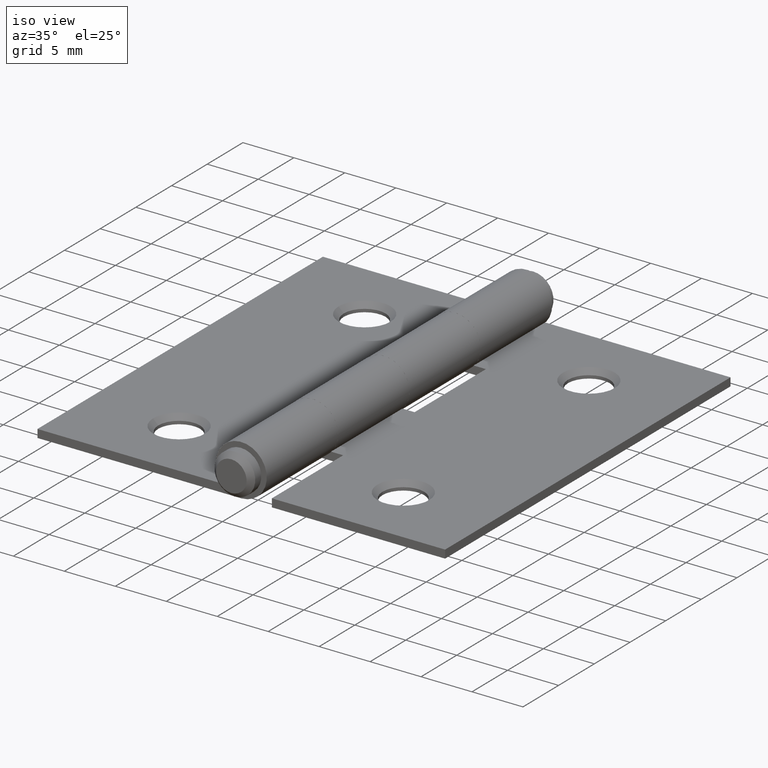
[diagram: clean part render]
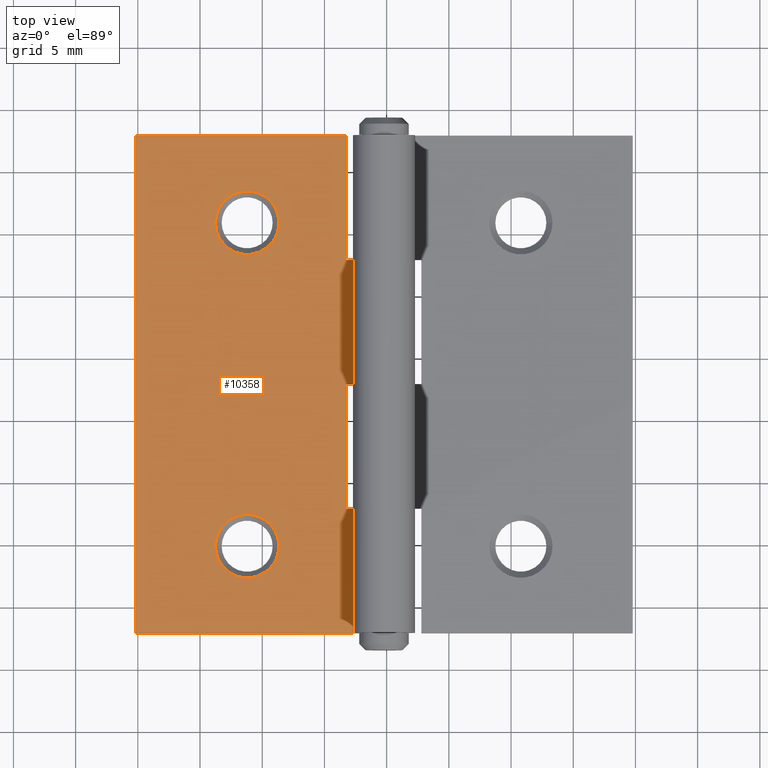
[diagram: tour spotlight — one face highlighted and labeled with its STEP entity id]
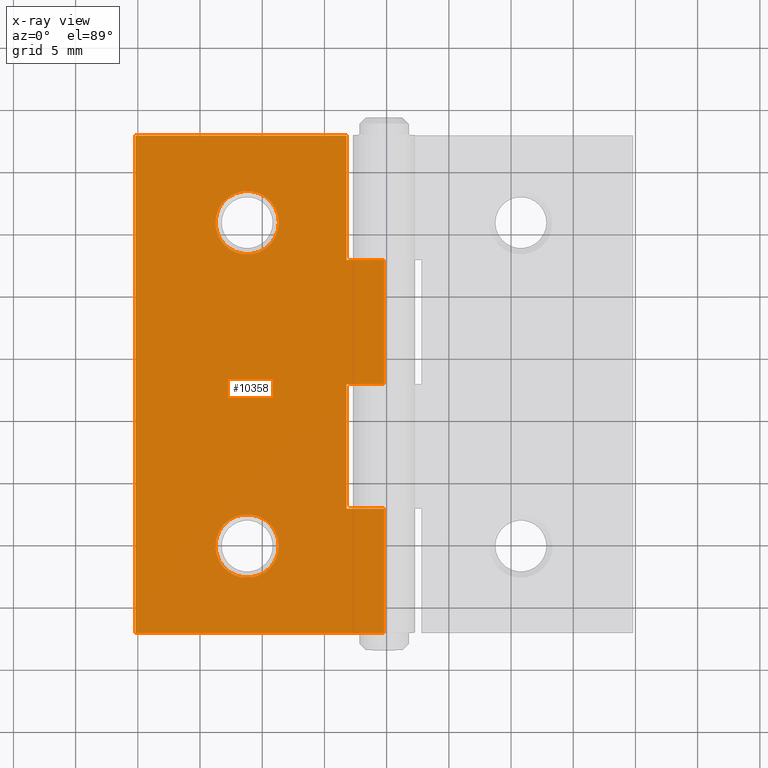
[diagram: x-ray of the same camera — body ghosted, this tour face saturated]
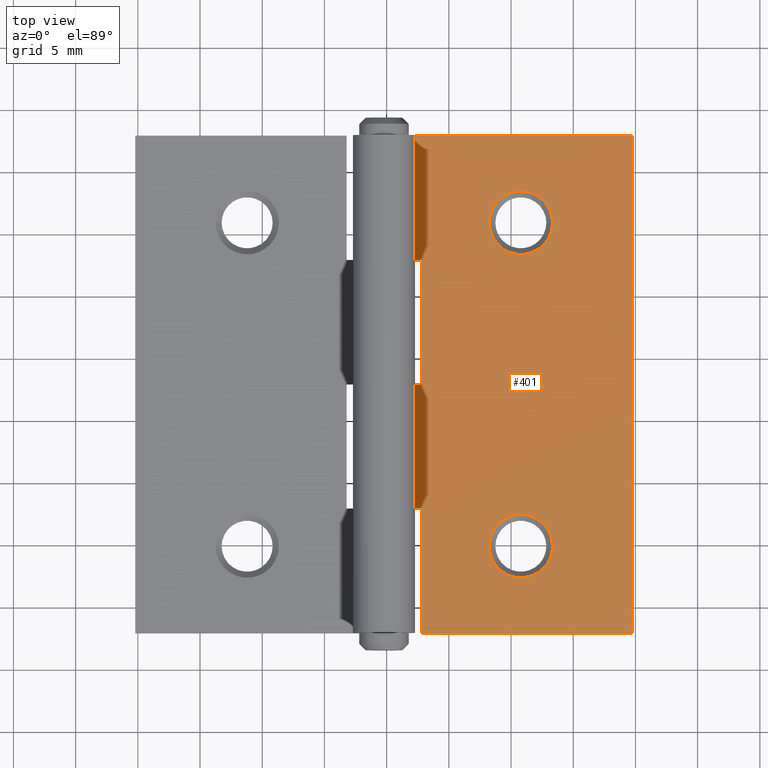
[diagram: tour spotlight — one face highlighted and labeled with its STEP entity id]
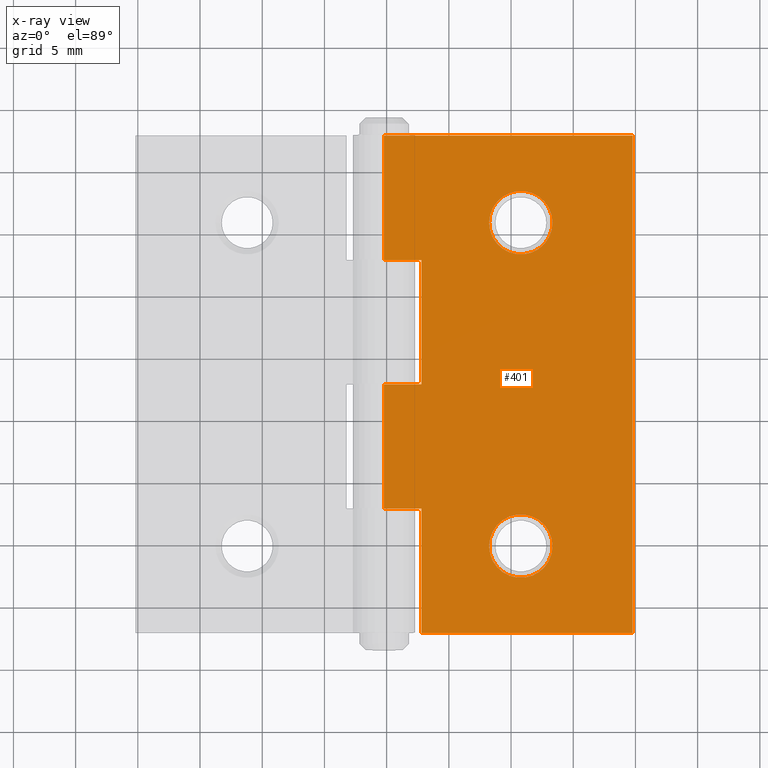
[diagram: x-ray of the same camera — body ghosted, this tour face saturated]
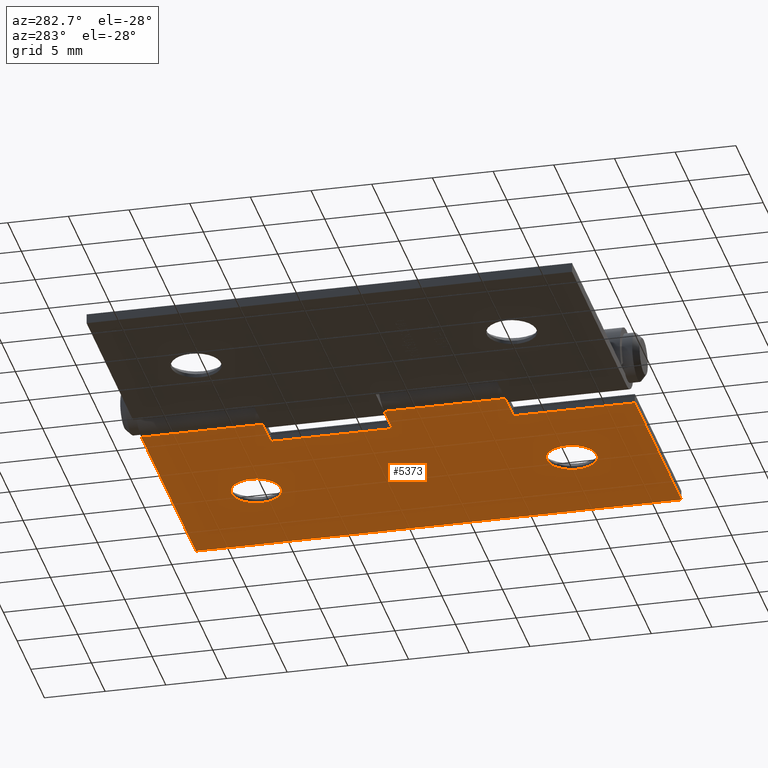
[diagram: tour spotlight — one face highlighted and labeled with its STEP entity id]
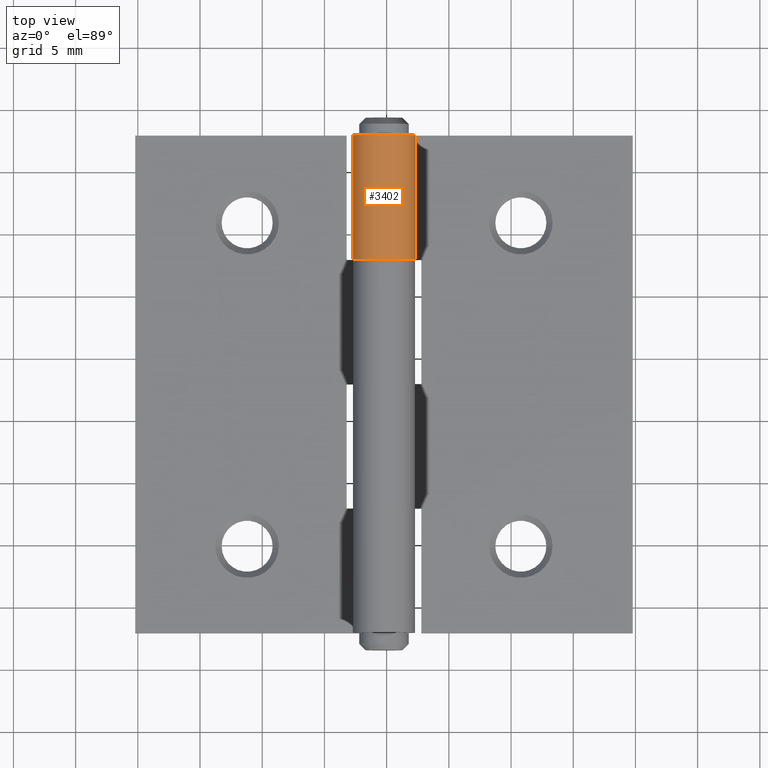
[diagram: tour spotlight — one face highlighted and labeled with its STEP entity id]
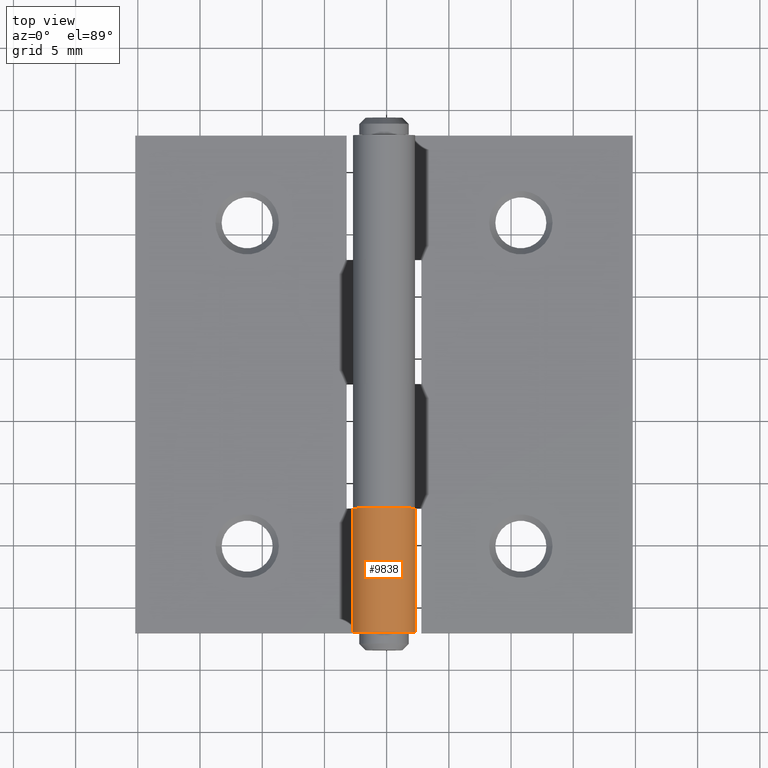
[diagram: tour spotlight — one face highlighted and labeled with its STEP entity id]
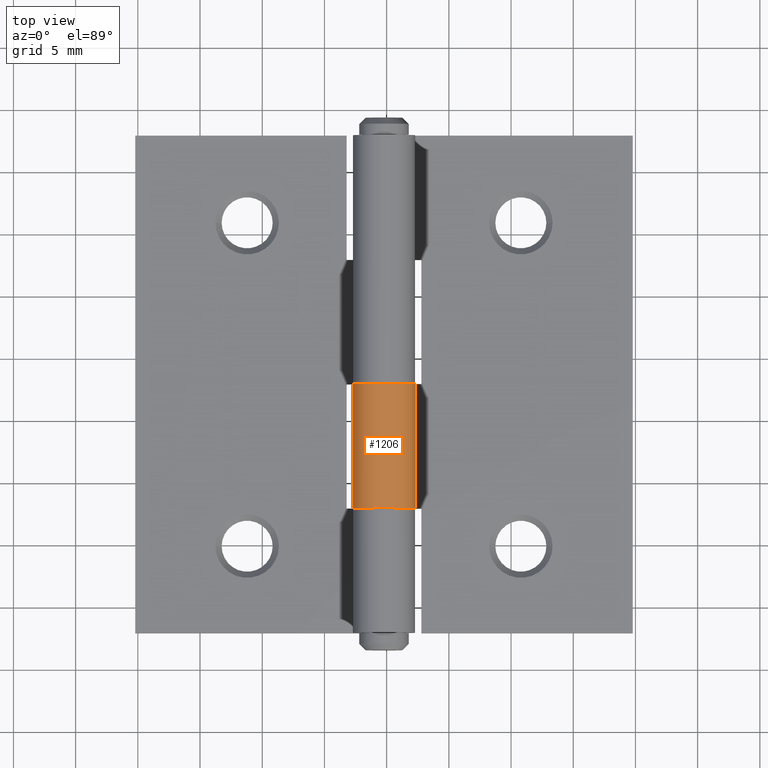
[diagram: tour spotlight — one face highlighted and labeled with its STEP entity id]
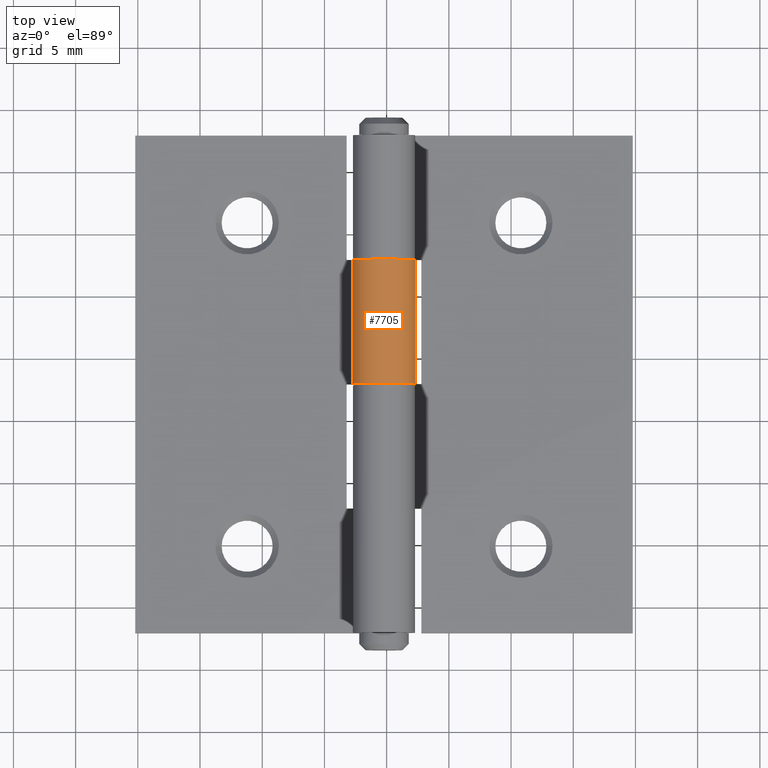
[diagram: tour spotlight — one face highlighted and labeled with its STEP entity id]
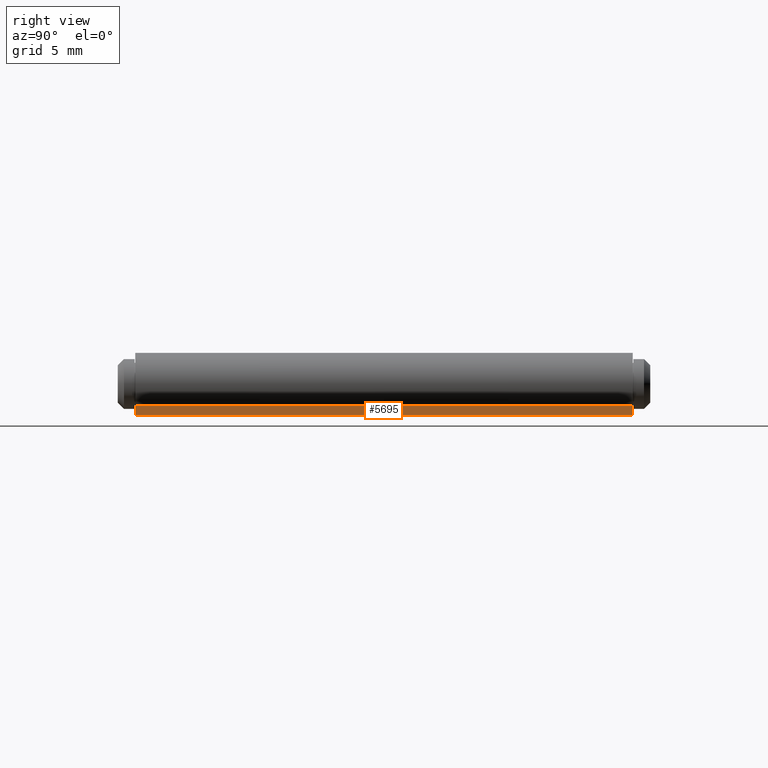
[diagram: tour spotlight — one face highlighted and labeled with its STEP entity id]
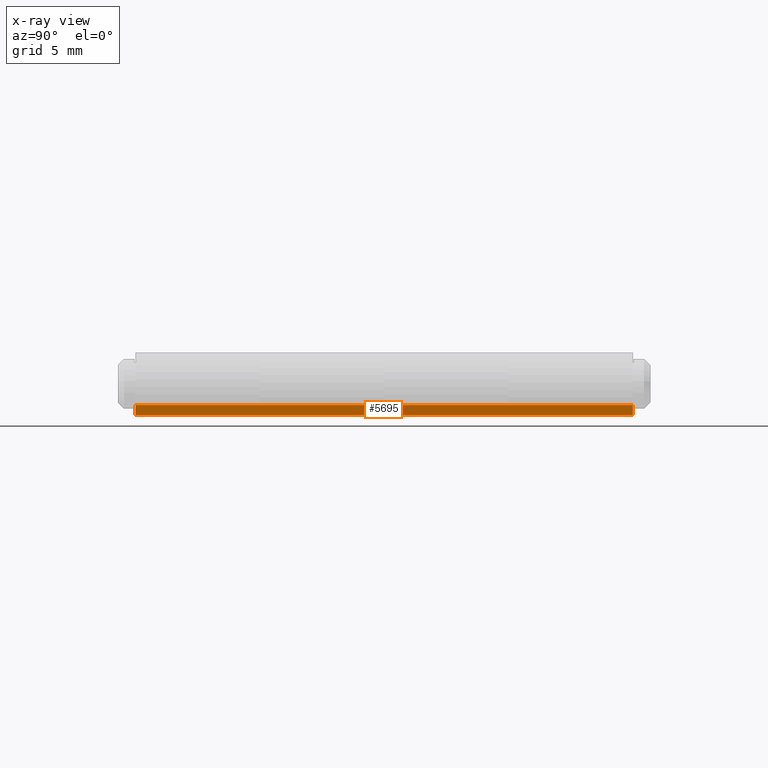
[diagram: x-ray of the same camera — body ghosted, this tour face saturated]
A machine part: a face-by-face anatomy tour. The part has 224 B-rep faces; the first image is the clean iso view, then the 8 largest visible faces are spotlighted one at a time (largest first), each with its STEP entity span.

Face 1 — top view, entity #10358. An x-ray twin of the same camera follows (body ghosted, this face saturated) — the face is partly hidden behind the body. In plain terms, the highlighted planar face has unit normal (-0, 0, -1).
Definition (entity closure, byte-faithful):
#192 = LINE ( 'NONE', #5171, #6454 ) ;
#383 = CARTESIAN_POINT ( 'NONE',  ( -22.50000000000000000, -20.00000000000000000, 0.8000000000000024869 ) ) ;
#419 = EDGE_CURVE ( 'NONE', #901, #8282, #9511, .T. ) ;
#499 = VERTEX_POINT ( 'NONE', #6265 ) ;
#760 = FACE_BOUND ( 'NONE', #4862, .T. ) ;
#806 = LINE ( 'NONE', #7033, #2960 ) ;
#901 = VERTEX_POINT ( 'NONE', #4815 ) ;
#1013 = CARTESIAN_POINT ( 'NONE',  ( -5.499999999999998224, 20.00000000000000000, 0.8000000000000003775 ) ) ;
#1032 = EDGE_CURVE ( 'NONE', #8872, #7978, #5064, .T. ) ;
#1057 = VERTEX_POINT ( 'NONE', #1726 ) ;
#1283 = DIRECTION ( 'NONE',  ( -1.301042606982605567E-16, 0.000000000000000000, -1.000000000000000000 ) ) ;
#1325 = CARTESIAN_POINT ( 'NONE',  ( -2.500000000000000444, 0.000000000000000000, 0.7999999999999999334 ) ) ;
#1388 = FACE_OUTER_BOUND ( 'NONE', #4230, .T. ) ;
#1397 = ORIENTED_EDGE ( 'NONE', *, *, #4462, .T. ) ;
#1555 = VECTOR ( 'NONE', #7431, 1000.000000000000000 ) ;
#1568 = CARTESIAN_POINT ( 'NONE',  ( -16.05000000000004690, 12.99999999999999822, 0.8000000000000017097 ) ) ;
#1726 = CARTESIAN_POINT ( 'NONE',  ( -5.499999999999999112, 10.00000000000000178, 0.8000000000000003775 ) ) ;
#1754 = VERTEX_POINT ( 'NONE', #1568 ) ;
#2026 = ORIENTED_EDGE ( 'NONE', *, *, #10073, .T. ) ;
#2056 = EDGE_CURVE ( 'NONE', #499, #8872, #2451, .T. ) ;
#2106 = VECTOR ( 'NONE', #5243, 1000.000000000000000 ) ;
#2355 = CARTESIAN_POINT ( 'NONE',  ( -16.05000000000004334, -13.00000000000000178, 0.8000000000000017097 ) ) ;
#2373 = LINE ( 'NONE', #5888, #2106 ) ;
#2451 = LINE ( 'NONE', #8213, #1555 ) ;
#2530 = ORIENTED_EDGE ( 'NONE', *, *, #3096, .T. ) ;
#2549 = VERTEX_POINT ( 'NONE', #9182 ) ;
#2745 = DIRECTION ( 'NONE',  ( -1.000000000000000000, -2.940209281316622002E-16, 1.301042606982605567E-16 ) ) ;
#2812 = PLANE ( 'NONE',  #5720 ) ;
#2889 = CARTESIAN_POINT ( 'NONE',  ( -2.500000000000000444, -20.00000000000000000, 0.7999999999999999334 ) ) ;
#2960 = VECTOR ( 'NONE', #3826, 1000.000000000000000 ) ;
#3048 = AXIS2_PLACEMENT_3D ( 'NONE', #6129, #1283, #8676 ) ;
#3096 = EDGE_CURVE ( 'NONE', #9664, #499, #192, .T. ) ;
#3113 = EDGE_CURVE ( 'NONE', #9689, #1057, #2373, .T. ) ;
#3166 = EDGE_CURVE ( 'NONE', #9689, #7978, #7815, .T. ) ;
#3200 = LINE ( 'NONE', #7203, #10281 ) ;
#3709 = CARTESIAN_POINT ( 'NONE',  ( -13.50000000000000711, 12.99999999999999822, 0.8000000000000013767 ) ) ;
#3777 = DIRECTION ( 'NONE',  ( 1.000000000000000000, -0.000000000000000000, -1.301042606982605567E-16 ) ) ;
#3826 = DIRECTION ( 'NONE',  ( -0.000000000000000000, -1.000000000000000000, -0.000000000000000000 ) ) ;
#3892 = CARTESIAN_POINT ( 'NONE',  ( -22.50000000000000000, 20.00000000000000000, 0.8000000000000024869 ) ) ;
#3903 = VECTOR ( 'NONE', #4513, 1000.000000000000000 ) ;
#3949 = ORIENTED_EDGE ( 'NONE', *, *, #3113, .T. ) ;
#4142 = ORIENTED_EDGE ( 'NONE', *, *, #1032, .T. ) ;
#4230 = EDGE_LOOP ( 'NONE', ( #10109, #4142, #4577, #3949, #8311, #5855, #4606, #2026, #6096, #2530 ) ) ;
#4462 = EDGE_CURVE ( 'NONE', #1754, #1754, #8212, .T. ) ;
#4513 = DIRECTION ( 'NONE',  ( -0.000000000000000000, -1.000000000000000000, -0.000000000000000000 ) ) ;
#4547 = DIRECTION ( 'NONE',  ( -1.301042606982605567E-16, 0.000000000000000000, -1.000000000000000000 ) ) ;
#4577 = ORIENTED_EDGE ( 'NONE', *, *, #3166, .F. ) ;
#4606 = ORIENTED_EDGE ( 'NONE', *, *, #419, .T. ) ;
#4645 = DIRECTION ( 'NONE',  ( -0.000000000000000000, -1.000000000000000000, -0.000000000000000000 ) ) ;
#4754 = DIRECTION ( 'NONE',  ( 1.000000000000000000, -0.000000000000000000, -1.301042606982605567E-16 ) ) ;
#4815 = CARTESIAN_POINT ( 'NONE',  ( -22.50000000000000000, 20.00000000000000000, 0.8000000000000024869 ) ) ;
#4862 = EDGE_LOOP ( 'NONE', ( #1397 ) ) ;
#5064 = LINE ( 'NONE', #1325, #8494 ) ;
#5171 = CARTESIAN_POINT ( 'NONE',  ( -2.499999999999992006, -9.999999999999998224, 0.7999999999999999334 ) ) ;
#5243 = DIRECTION ( 'NONE',  ( -1.000000000000000000, 0.000000000000000000, 1.301042606982605567E-16 ) ) ;
#5720 = AXIS2_PLACEMENT_3D ( 'NONE', #6762, #10081, #6047 ) ;
#5855 = ORIENTED_EDGE ( 'NONE', *, *, #9737, .F. ) ;
#5888 = CARTESIAN_POINT ( 'NONE',  ( -2.500000000000000444, 10.00000000000000178, 0.7999999999999999334 ) ) ;
#5968 = LINE ( 'NONE', #2889, #8126 ) ;
#6047 = DIRECTION ( 'NONE',  ( -1.000000000000000000, 0.000000000000000000, 1.301042606982605567E-16 ) ) ;
#6096 = ORIENTED_EDGE ( 'NONE', *, *, #7559, .F. ) ;
#6129 = CARTESIAN_POINT ( 'NONE',  ( -13.50000000000000355, -13.00000000000000178, 0.8000000000000013767 ) ) ;
#6253 = CARTESIAN_POINT ( 'NONE',  ( -5.499999999999998224, 0.000000000000000000, 0.8000000000000003775 ) ) ;
#6265 = CARTESIAN_POINT ( 'NONE',  ( -5.499999999999998224, -9.999999999999998224, 0.8000000000000003775 ) ) ;
#6454 = VECTOR ( 'NONE', #2745, 1000.000000000000000 ) ;
#6762 = CARTESIAN_POINT ( 'NONE',  ( -2.500000000000000444, 20.00000000000000000, 0.7999999999999999334 ) ) ;
#6904 = CARTESIAN_POINT ( 'NONE',  ( -2.500000000000000444, 20.00000000000000000, 0.7999999999999999334 ) ) ;
#7033 = CARTESIAN_POINT ( 'NONE',  ( -2.500000000000000444, 20.00000000000000000, 0.7999999999999999334 ) ) ;
#7203 = CARTESIAN_POINT ( 'NONE',  ( -2.500000000000000444, 20.00000000000000000, 0.7999999999999999334 ) ) ;
#7256 = CIRCLE ( 'NONE', #3048, 2.550000000000040234 ) ;
#7431 = DIRECTION ( 'NONE',  ( 0.000000000000000000, 1.000000000000000000, 0.000000000000000000 ) ) ;
#7559 = EDGE_CURVE ( 'NONE', #9664, #2549, #806, .T. ) ;
#7735 = VERTEX_POINT ( 'NONE', #9240 ) ;
#7784 = DIRECTION ( 'NONE',  ( 1.000000000000000000, -0.000000000000000000, -1.301042606982605567E-16 ) ) ;
#7815 = LINE ( 'NONE', #6904, #3903 ) ;
#7868 = LINE ( 'NONE', #1013, #9402 ) ;
#7978 = VERTEX_POINT ( 'NONE', #8893 ) ;
#8123 = AXIS2_PLACEMENT_3D ( 'NONE', #3709, #4547, #9349 ) ;
#8126 = VECTOR ( 'NONE', #3777, 1000.000000000000000 ) ;
#8212 = CIRCLE ( 'NONE', #8123, 2.550000000000040234 ) ;
#8213 = CARTESIAN_POINT ( 'NONE',  ( -5.499999999999998224, 20.00000000000000000, 0.8000000000000003775 ) ) ;
#8282 = VERTEX_POINT ( 'NONE', #383 ) ;
#8311 = ORIENTED_EDGE ( 'NONE', *, *, #9933, .T. ) ;
#8362 = CARTESIAN_POINT ( 'NONE',  ( -2.500000000000000444, -9.999999999999998224, 0.7999999999999999334 ) ) ;
#8494 = VECTOR ( 'NONE', #7784, 1000.000000000000000 ) ;
#8659 = EDGE_LOOP ( 'NONE', ( #9411 ) ) ;
#8676 = DIRECTION ( 'NONE',  ( -1.000000000000000000, 0.000000000000000000, 1.275531967629985031E-16 ) ) ;
#8872 = VERTEX_POINT ( 'NONE', #6253 ) ;
#8893 = CARTESIAN_POINT ( 'NONE',  ( -2.500000000000000444, 0.000000000000000000, 0.7999999999999999334 ) ) ;
#9182 = CARTESIAN_POINT ( 'NONE',  ( -2.500000000000000444, -20.00000000000000000, 0.7999999999999999334 ) ) ;
#9240 = CARTESIAN_POINT ( 'NONE',  ( -5.499999999999998224, 20.00000000000000000, 0.8000000000000012657 ) ) ;
#9252 = VECTOR ( 'NONE', #4645, 1000.000000000000000 ) ;
#9349 = DIRECTION ( 'NONE',  ( -1.000000000000000000, 0.000000000000000000, 1.275531967629985031E-16 ) ) ;
#9402 = VECTOR ( 'NONE', #9852, 1000.000000000000000 ) ;
#9411 = ORIENTED_EDGE ( 'NONE', *, *, #10086, .T. ) ;
#9511 = LINE ( 'NONE', #3892, #9252 ) ;
#9664 = VERTEX_POINT ( 'NONE', #8362 ) ;
#9689 = VERTEX_POINT ( 'NONE', #10083 ) ;
#9737 = EDGE_CURVE ( 'NONE', #901, #7735, #3200, .T. ) ;
#9852 = DIRECTION ( 'NONE',  ( 8.673617379884036705E-17, 1.000000000000000000, -1.128474576789396418E-32 ) ) ;
#9898 = FACE_BOUND ( 'NONE', #8659, .T. ) ;
#9933 = EDGE_CURVE ( 'NONE', #1057, #7735, #7868, .T. ) ;
#10073 = EDGE_CURVE ( 'NONE', #8282, #2549, #5968, .T. ) ;
#10081 = DIRECTION ( 'NONE',  ( -1.301042606982605567E-16, 0.000000000000000000, -1.000000000000000000 ) ) ;
#10083 = CARTESIAN_POINT ( 'NONE',  ( -2.500000000000000000, 10.00000000000000178, 0.7999999999999999334 ) ) ;
#10086 = EDGE_CURVE ( 'NONE', #10393, #10393, #7256, .T. ) ;
#10109 = ORIENTED_EDGE ( 'NONE', *, *, #2056, .T. ) ;
#10281 = VECTOR ( 'NONE', #4754, 1000.000000000000000 ) ;
#10358 = ADVANCED_FACE ( 'NONE', ( #9898, #760, #1388 ), #2812, .F. ) ;
#10393 = VERTEX_POINT ( 'NONE', #2355 ) ;

Face 2 — top view, entity #401. An x-ray twin of the same camera follows (body ghosted, this face saturated) — the face is partly hidden behind the body. In plain terms, the highlighted planar face has unit normal (-0, -0, -1).
Definition (entity closure, byte-faithful):
#20 = EDGE_CURVE ( 'NONE', #9413, #3971, #5461, .T. ) ;
#25 = ORIENTED_EDGE ( 'NONE', *, *, #10212, .T. ) ;
#95 = LINE ( 'NONE', #5666, #6969 ) ;
#114 = CIRCLE ( 'NONE', #3199, 2.550000000000040234 ) ;
#149 = ORIENTED_EDGE ( 'NONE', *, *, #9542, .T. ) ;
#151 = CARTESIAN_POINT ( 'NONE',  ( -2.500000000000000000, 10.00000000000000178, 0.7999999999999999334 ) ) ;
#246 = EDGE_LOOP ( 'NONE', ( #25 ) ) ;
#350 = DIRECTION ( 'NONE',  ( -0.000000000000000000, -1.000000000000000000, -0.000000000000000000 ) ) ;
#401 = ADVANCED_FACE ( 'NONE', ( #4341, #1391, #1888 ), #6940, .F. ) ;
#484 = ORIENTED_EDGE ( 'NONE', *, *, #9871, .T. ) ;
#550 = LINE ( 'NONE', #2232, #8955 ) ;
#581 = CARTESIAN_POINT ( 'NONE',  ( -5.499999999999999112, 10.00000000000000178, 0.8000000000000003775 ) ) ;
#793 = CARTESIAN_POINT ( 'NONE',  ( -2.500000000000000444, 0.000000000000000000, 0.7999999999999999334 ) ) ;
#928 = CARTESIAN_POINT ( 'NONE',  ( -5.499999999999998224, 20.00000000000000000, 0.8000000000000012657 ) ) ;
#946 = CARTESIAN_POINT ( 'NONE',  ( -2.500000000000000444, 10.00000000000000178, 0.7999999999999999334 ) ) ;
#963 = EDGE_CURVE ( 'NONE', #9522, #4870, #9632, .T. ) ;
#1015 = VECTOR ( 'NONE', #2685, 1000.000000000000000 ) ;
#1162 = VECTOR ( 'NONE', #7043, 1000.000000000000000 ) ;
#1173 = EDGE_CURVE ( 'NONE', #4120, #6081, #95, .T. ) ;
#1391 = FACE_BOUND ( 'NONE', #4473, .T. ) ;
#1428 = DIRECTION ( 'NONE',  ( -1.000000000000000000, 0.000000000000000000, 1.275531967629985031E-16 ) ) ;
#1441 = EDGE_CURVE ( 'NONE', #9522, #6081, #5321, .T. ) ;
#1465 = VECTOR ( 'NONE', #350, 1000.000000000000000 ) ;
#1512 = EDGE_CURVE ( 'NONE', #6309, #3715, #9877, .T. ) ;
#1640 = VECTOR ( 'NONE', #10376, 1000.000000000000000 ) ;
#1766 = CIRCLE ( 'NONE', #5783, 2.550000000000040234 ) ;
#1888 = FACE_OUTER_BOUND ( 'NONE', #3287, .T. ) ;
#1953 = ORIENTED_EDGE ( 'NONE', *, *, #3226, .F. ) ;
#2002 = VECTOR ( 'NONE', #7066, 1000.000000000000000 ) ;
#2086 = VECTOR ( 'NONE', #8779, 1000.000000000000000 ) ;
#2232 = CARTESIAN_POINT ( 'NONE',  ( -2.500000000000000444, -20.00000000000000000, 0.7999999999999999334 ) ) ;
#2270 = VECTOR ( 'NONE', #4565, 1000.000000000000000 ) ;
#2685 = DIRECTION ( 'NONE',  ( -1.000000000000000000, 0.000000000000000000, 1.301042606982605567E-16 ) ) ;
#2853 = DIRECTION ( 'NONE',  ( -1.301042606982605567E-16, 0.000000000000000000, -1.000000000000000000 ) ) ;
#3199 = AXIS2_PLACEMENT_3D ( 'NONE', #3422, #3496, #9130 ) ;
#3226 = EDGE_CURVE ( 'NONE', #9941, #9825, #5805, .T. ) ;
#3287 = EDGE_LOOP ( 'NONE', ( #4045, #6997, #1953, #484, #6421, #9214, #4914, #6737, #6496, #3578 ) ) ;
#3422 = CARTESIAN_POINT ( 'NONE',  ( -13.50000000000000711, 12.99999999999999822, 0.8000000000000013767 ) ) ;
#3496 = DIRECTION ( 'NONE',  ( -1.301042606982605567E-16, 0.000000000000000000, -1.000000000000000000 ) ) ;
#3578 = ORIENTED_EDGE ( 'NONE', *, *, #8390, .T. ) ;
#3601 = CARTESIAN_POINT ( 'NONE',  ( -2.500000000000000444, 20.00000000000000000, 0.7999999999999999334 ) ) ;
#3652 = CARTESIAN_POINT ( 'NONE',  ( -5.499999999999998224, 20.00000000000000000, 0.8000000000000003775 ) ) ;
#3669 = VERTEX_POINT ( 'NONE', #3963 ) ;
#3715 = VERTEX_POINT ( 'NONE', #4544 ) ;
#3886 = CARTESIAN_POINT ( 'NONE',  ( -2.499999999999992006, -9.999999999999998224, 0.7999999999999999334 ) ) ;
#3963 = CARTESIAN_POINT ( 'NONE',  ( -16.05000000000004334, -13.00000000000000178, 0.8000000000000017097 ) ) ;
#3971 = VERTEX_POINT ( 'NONE', #5102 ) ;
#4045 = ORIENTED_EDGE ( 'NONE', *, *, #1512, .T. ) ;
#4120 = VERTEX_POINT ( 'NONE', #581 ) ;
#4257 = CARTESIAN_POINT ( 'NONE',  ( -22.50000000000000000, 20.00000000000000000, 0.8000000000000024869 ) ) ;
#4341 = FACE_BOUND ( 'NONE', #246, .T. ) ;
#4473 = EDGE_LOOP ( 'NONE', ( #149 ) ) ;
#4544 = CARTESIAN_POINT ( 'NONE',  ( -5.499999999999998224, 0.000000000000000000, 0.8000000000000003775 ) ) ;
#4565 = DIRECTION ( 'NONE',  ( 0.000000000000000000, 1.000000000000000000, 0.000000000000000000 ) ) ;
#4863 = LINE ( 'NONE', #3886, #1162 ) ;
#4870 = VERTEX_POINT ( 'NONE', #7929 ) ;
#4914 = ORIENTED_EDGE ( 'NONE', *, *, #963, .T. ) ;
#5102 = CARTESIAN_POINT ( 'NONE',  ( -2.500000000000000444, -20.00000000000000000, 0.7999999999999999334 ) ) ;
#5321 = LINE ( 'NONE', #6889, #2002 ) ;
#5401 = LINE ( 'NONE', #10440, #2086 ) ;
#5461 = LINE ( 'NONE', #6426, #1640 ) ;
#5527 = CARTESIAN_POINT ( 'NONE',  ( -13.50000000000000355, -13.00000000000000178, 0.8000000000000013767 ) ) ;
#5542 = EDGE_CURVE ( 'NONE', #3715, #9825, #5401, .T. ) ;
#5666 = CARTESIAN_POINT ( 'NONE',  ( -5.499999999999998224, 20.00000000000000000, 0.8000000000000003775 ) ) ;
#5679 = CARTESIAN_POINT ( 'NONE',  ( -2.500000000000000444, -9.999999999999998224, 0.7999999999999999334 ) ) ;
#5783 = AXIS2_PLACEMENT_3D ( 'NONE', #5527, #6268, #1428 ) ;
#5805 = LINE ( 'NONE', #3601, #1465 ) ;
#5940 = EDGE_CURVE ( 'NONE', #4870, #3971, #550, .T. ) ;
#6037 = DIRECTION ( 'NONE',  ( 8.673617379884036705E-17, 1.000000000000000000, -1.128474576789396418E-32 ) ) ;
#6056 = CARTESIAN_POINT ( 'NONE',  ( -22.50000000000000000, 20.00000000000000000, 0.8000000000000024869 ) ) ;
#6081 = VERTEX_POINT ( 'NONE', #928 ) ;
#6084 = CARTESIAN_POINT ( 'NONE',  ( -2.500000000000000444, 20.00000000000000000, 0.7999999999999999334 ) ) ;
#6268 = DIRECTION ( 'NONE',  ( -1.301042606982605567E-16, 0.000000000000000000, -1.000000000000000000 ) ) ;
#6309 = VERTEX_POINT ( 'NONE', #7259 ) ;
#6421 = ORIENTED_EDGE ( 'NONE', *, *, #1173, .T. ) ;
#6426 = CARTESIAN_POINT ( 'NONE',  ( -2.500000000000000444, 20.00000000000000000, 0.7999999999999999334 ) ) ;
#6496 = ORIENTED_EDGE ( 'NONE', *, *, #20, .F. ) ;
#6737 = ORIENTED_EDGE ( 'NONE', *, *, #5940, .T. ) ;
#6852 = VERTEX_POINT ( 'NONE', #7264 ) ;
#6876 = DIRECTION ( 'NONE',  ( -0.000000000000000000, -1.000000000000000000, -0.000000000000000000 ) ) ;
#6889 = CARTESIAN_POINT ( 'NONE',  ( -2.500000000000000444, 20.00000000000000000, 0.7999999999999999334 ) ) ;
#6940 = PLANE ( 'NONE',  #7312 ) ;
#6969 = VECTOR ( 'NONE', #6037, 1000.000000000000000 ) ;
#6997 = ORIENTED_EDGE ( 'NONE', *, *, #5542, .T. ) ;
#7043 = DIRECTION ( 'NONE',  ( -1.000000000000000000, -2.940209281316622002E-16, 1.301042606982605567E-16 ) ) ;
#7066 = DIRECTION ( 'NONE',  ( 1.000000000000000000, -0.000000000000000000, -1.301042606982605567E-16 ) ) ;
#7259 = CARTESIAN_POINT ( 'NONE',  ( -5.499999999999998224, -9.999999999999998224, 0.8000000000000003775 ) ) ;
#7264 = CARTESIAN_POINT ( 'NONE',  ( -16.05000000000004690, 12.99999999999999822, 0.8000000000000017097 ) ) ;
#7312 = AXIS2_PLACEMENT_3D ( 'NONE', #6084, #2853, #8541 ) ;
#7929 = CARTESIAN_POINT ( 'NONE',  ( -22.50000000000000000, -20.00000000000000000, 0.8000000000000024869 ) ) ;
#8390 = EDGE_CURVE ( 'NONE', #9413, #6309, #4863, .T. ) ;
#8541 = DIRECTION ( 'NONE',  ( -1.000000000000000000, 0.000000000000000000, 1.301042606982605567E-16 ) ) ;
#8779 = DIRECTION ( 'NONE',  ( 1.000000000000000000, -0.000000000000000000, -1.301042606982605567E-16 ) ) ;
#8955 = VECTOR ( 'NONE', #9573, 1000.000000000000000 ) ;
#9130 = DIRECTION ( 'NONE',  ( -1.000000000000000000, 0.000000000000000000, 1.275531967629985031E-16 ) ) ;
#9214 = ORIENTED_EDGE ( 'NONE', *, *, #1441, .F. ) ;
#9413 = VERTEX_POINT ( 'NONE', #5679 ) ;
#9522 = VERTEX_POINT ( 'NONE', #4257 ) ;
#9542 = EDGE_CURVE ( 'NONE', #6852, #6852, #114, .T. ) ;
#9573 = DIRECTION ( 'NONE',  ( 1.000000000000000000, -0.000000000000000000, -1.301042606982605567E-16 ) ) ;
#9632 = LINE ( 'NONE', #6056, #10260 ) ;
#9825 = VERTEX_POINT ( 'NONE', #793 ) ;
#9871 = EDGE_CURVE ( 'NONE', #9941, #4120, #10031, .T. ) ;
#9877 = LINE ( 'NONE', #3652, #2270 ) ;
#9941 = VERTEX_POINT ( 'NONE', #151 ) ;
#10031 = LINE ( 'NONE', #946, #1015 ) ;
#10212 = EDGE_CURVE ( 'NONE', #3669, #3669, #1766, .T. ) ;
#10260 = VECTOR ( 'NONE', #6876, 1000.000000000000000 ) ;
#10376 = DIRECTION ( 'NONE',  ( -0.000000000000000000, -1.000000000000000000, -0.000000000000000000 ) ) ;
#10440 = CARTESIAN_POINT ( 'NONE',  ( -2.500000000000000444, 0.000000000000000000, 0.7999999999999999334 ) ) ;

Face 3 — auxiliary view, entity #5373. In plain terms, the highlighted planar face has unit normal (0, 0, 1).
Definition (entity closure, byte-faithful):
#164 = CARTESIAN_POINT ( 'NONE',  ( 6.300000000000003375, 0.000000000000000000, -8.196568423990417465E-16 ) ) ;
#237 = CARTESIAN_POINT ( 'NONE',  ( -5.499999999999998224, 20.00000000000000000, 4.662069341687667094E-16 ) ) ;
#349 = VERTEX_POINT ( 'NONE', #6902 ) ;
#353 = VERTEX_POINT ( 'NONE', #5560 ) ;
#414 = CARTESIAN_POINT ( 'NONE',  ( -2.500000000000000444, 20.00000000000000000, 1.084202172485504434E-16 ) ) ;
#631 = ORIENTED_EDGE ( 'NONE', *, *, #6283, .T. ) ;
#818 = DIRECTION ( 'NONE',  ( -0.000000000000000000, -1.000000000000000000, -0.000000000000000000 ) ) ;
#922 = CARTESIAN_POINT ( 'NONE',  ( -13.50000000000000711, 12.99999999999999822, 1.084202172485504434E-16 ) ) ;
#953 = VERTEX_POINT ( 'NONE', #10126 ) ;
#967 = EDGE_CURVE ( 'NONE', #2878, #6882, #5595, .T. ) ;
#1106 = EDGE_CURVE ( 'NONE', #349, #1573, #1746, .T. ) ;
#1214 = VERTEX_POINT ( 'NONE', #8450 ) ;
#1250 = CARTESIAN_POINT ( 'NONE',  ( -2.500000000000000444, -20.00000000000000000, 1.084202172485504434E-16 ) ) ;
#1301 = CARTESIAN_POINT ( 'NONE',  ( -2.500000000000000444, 20.00000000000000000, 1.084202172485504434E-16 ) ) ;
#1314 = CARTESIAN_POINT ( 'NONE',  ( -2.500000000000000444, 10.00000000000000178, 3.252606517456517246E-16 ) ) ;
#1399 = ORIENTED_EDGE ( 'NONE', *, *, #6573, .T. ) ;
#1573 = VERTEX_POINT ( 'NONE', #3107 ) ;
#1664 = ORIENTED_EDGE ( 'NONE', *, *, #2552, .T. ) ;
#1746 = LINE ( 'NONE', #164, #9117 ) ;
#1835 = FACE_BOUND ( 'NONE', #8567, .T. ) ;
#1922 = LINE ( 'NONE', #7848, #6134 ) ;
#1994 = DIRECTION ( 'NONE',  ( 8.673617379884036705E-17, 1.000000000000000000, -9.629649721936180634E-33 ) ) ;
#2068 = CARTESIAN_POINT ( 'NONE',  ( -22.50000000000000000, -20.00000000000000000, 2.493664996716660198E-15 ) ) ;
#2099 = CIRCLE ( 'NONE', #5008, 2.049999999999999822 ) ;
#2307 = ORIENTED_EDGE ( 'NONE', *, *, #3916, .F. ) ;
#2408 = VECTOR ( 'NONE', #1994, 1000.000000000000000 ) ;
#2552 = EDGE_CURVE ( 'NONE', #5072, #5072, #7118, .T. ) ;
#2559 = DIRECTION ( 'NONE',  ( 0.000000000000000000, 0.000000000000000000, 1.000000000000000000 ) ) ;
#2774 = DIRECTION ( 'NONE',  ( -1.000000000000000000, 0.000000000000000000, 1.301042606982605567E-16 ) ) ;
#2878 = VERTEX_POINT ( 'NONE', #5768 ) ;
#3017 = EDGE_CURVE ( 'NONE', #8388, #2878, #4799, .T. ) ;
#3082 = VECTOR ( 'NONE', #5239, 1000.000000000000000 ) ;
#3085 = DIRECTION ( 'NONE',  ( 1.000000000000000000, 0.000000000000000000, 0.000000000000000000 ) ) ;
#3107 = CARTESIAN_POINT ( 'NONE',  ( -2.500000000000000444, 0.000000000000000000, 3.252606517456513302E-16 ) ) ;
#3191 = DIRECTION ( 'NONE',  ( 0.000000000000000000, 1.000000000000000000, 0.000000000000000000 ) ) ;
#3204 = DIRECTION ( 'NONE',  ( 1.000000000000000000, 0.000000000000000000, -1.192622389734055124E-16 ) ) ;
#3213 = DIRECTION ( 'NONE',  ( 1.000000000000000000, -0.000000000000000000, -1.301042606982605321E-16 ) ) ;
#3434 = EDGE_LOOP ( 'NONE', ( #1664 ) ) ;
#3497 = CARTESIAN_POINT ( 'NONE',  ( 6.300000000000003375, 10.00000000000000178, -8.196568423990417465E-16 ) ) ;
#3566 = ORIENTED_EDGE ( 'NONE', *, *, #7700, .T. ) ;
#3619 = FACE_OUTER_BOUND ( 'NONE', #6251, .T. ) ;
#3829 = DIRECTION ( 'NONE',  ( -1.000000000000000000, 0.000000000000000000, 1.192622389734055124E-16 ) ) ;
#3840 = VECTOR ( 'NONE', #7752, 1000.000000000000000 ) ;
#3916 = EDGE_CURVE ( 'NONE', #10415, #1214, #8333, .T. ) ;
#4011 = LINE ( 'NONE', #414, #5271 ) ;
#4029 = FACE_BOUND ( 'NONE', #3434, .T. ) ;
#4058 = PLANE ( 'NONE',  #9543 ) ;
#4087 = VERTEX_POINT ( 'NONE', #2068 ) ;
#4365 = ORIENTED_EDGE ( 'NONE', *, *, #967, .F. ) ;
#4396 = ORIENTED_EDGE ( 'NONE', *, *, #4756, .T. ) ;
#4756 = EDGE_CURVE ( 'NONE', #353, #353, #2099, .T. ) ;
#4799 = LINE ( 'NONE', #3497, #8342 ) ;
#4890 = DIRECTION ( 'NONE',  ( -0.000000000000000000, -1.000000000000000000, -0.000000000000000000 ) ) ;
#5008 = AXIS2_PLACEMENT_3D ( 'NONE', #10233, #10202, #3085 ) ;
#5072 = VERTEX_POINT ( 'NONE', #10391 ) ;
#5077 = DIRECTION ( 'NONE',  ( 1.000000000000000000, 0.000000000000000000, 0.000000000000000000 ) ) ;
#5089 = ORIENTED_EDGE ( 'NONE', *, *, #5936, .F. ) ;
#5219 = VERTEX_POINT ( 'NONE', #8114 ) ;
#5239 = DIRECTION ( 'NONE',  ( -0.000000000000000000, -1.000000000000000000, -0.000000000000000000 ) ) ;
#5271 = VECTOR ( 'NONE', #818, 1000.000000000000000 ) ;
#5373 = ADVANCED_FACE ( 'NONE', ( #1835, #4029, #3619 ), #4058, .F. ) ;
#5560 = CARTESIAN_POINT ( 'NONE',  ( -11.45000000000000284, -13.00000000000000178, 1.084202172485504434E-16 ) ) ;
#5595 = LINE ( 'NONE', #8571, #2408 ) ;
#5689 = DIRECTION ( 'NONE',  ( 1.192622389734055124E-16, -0.000000000000000000, 1.000000000000000000 ) ) ;
#5768 = CARTESIAN_POINT ( 'NONE',  ( -5.499999999999999112, 10.00000000000000178, 7.155734338404328278E-16 ) ) ;
#5786 = VECTOR ( 'NONE', #4890, 1000.000000000000000 ) ;
#5936 = EDGE_CURVE ( 'NONE', #6882, #5219, #7051, .T. ) ;
#6134 = VECTOR ( 'NONE', #3191, 1000.000000000000000 ) ;
#6251 = EDGE_LOOP ( 'NONE', ( #631, #6513, #6507, #2307, #1399, #3566, #7425, #5089, #4365, #10446 ) ) ;
#6283 = EDGE_CURVE ( 'NONE', #8388, #1573, #4011, .T. ) ;
#6427 = VECTOR ( 'NONE', #3829, 1000.000000000000000 ) ;
#6507 = ORIENTED_EDGE ( 'NONE', *, *, #7906, .F. ) ;
#6513 = ORIENTED_EDGE ( 'NONE', *, *, #1106, .F. ) ;
#6573 = EDGE_CURVE ( 'NONE', #10415, #953, #9186, .T. ) ;
#6696 = AXIS2_PLACEMENT_3D ( 'NONE', #922, #2559, #5077 ) ;
#6829 = CARTESIAN_POINT ( 'NONE',  ( -2.500000000000000444, -9.999999999999996447, 3.252606517456513302E-16 ) ) ;
#6882 = VERTEX_POINT ( 'NONE', #237 ) ;
#6902 = CARTESIAN_POINT ( 'NONE',  ( -5.499999999999998224, 0.000000000000000000, 7.155734338404327292E-16 ) ) ;
#7007 = LINE ( 'NONE', #9978, #3082 ) ;
#7051 = LINE ( 'NONE', #1301, #6427 ) ;
#7118 = CIRCLE ( 'NONE', #6696, 2.049999999999999822 ) ;
#7234 = CARTESIAN_POINT ( 'NONE',  ( -2.500000000000000444, 20.00000000000000000, 1.084202172485504434E-16 ) ) ;
#7380 = CARTESIAN_POINT ( 'NONE',  ( 6.300000000000003375, -9.999999999999994671, -8.196568423990417465E-16 ) ) ;
#7425 = ORIENTED_EDGE ( 'NONE', *, *, #8255, .F. ) ;
#7700 = EDGE_CURVE ( 'NONE', #953, #4087, #8418, .T. ) ;
#7752 = DIRECTION ( 'NONE',  ( -1.000000000000000000, 0.000000000000000000, 1.192622389734055124E-16 ) ) ;
#7848 = CARTESIAN_POINT ( 'NONE',  ( -5.499999999999998224, -9.999999999999998224, 7.155734338404327292E-16 ) ) ;
#7906 = EDGE_CURVE ( 'NONE', #1214, #349, #1922, .T. ) ;
#8114 = CARTESIAN_POINT ( 'NONE',  ( -22.50000000000000000, 20.00000000000000000, 2.493664996716660198E-15 ) ) ;
#8255 = EDGE_CURVE ( 'NONE', #5219, #4087, #7007, .T. ) ;
#8333 = LINE ( 'NONE', #7380, #10218 ) ;
#8342 = VECTOR ( 'NONE', #2774, 1000.000000000000000 ) ;
#8388 = VERTEX_POINT ( 'NONE', #1314 ) ;
#8418 = LINE ( 'NONE', #1250, #3840 ) ;
#8450 = CARTESIAN_POINT ( 'NONE',  ( -5.499999999999998224, -9.999999999999998224, 7.155734338404327292E-16 ) ) ;
#8567 = EDGE_LOOP ( 'NONE', ( #4396 ) ) ;
#8571 = CARTESIAN_POINT ( 'NONE',  ( -5.499999999999998224, 20.00000000000000000, 7.155734338404327292E-16 ) ) ;
#8837 = CARTESIAN_POINT ( 'NONE',  ( -2.500000000000000444, 20.00000000000000000, 1.084202172485504434E-16 ) ) ;
#9039 = DIRECTION ( 'NONE',  ( -1.000000000000000000, -2.940209281316622002E-16, 1.301042606982605321E-16 ) ) ;
#9117 = VECTOR ( 'NONE', #3213, 1000.000000000000000 ) ;
#9186 = LINE ( 'NONE', #7234, #5786 ) ;
#9543 = AXIS2_PLACEMENT_3D ( 'NONE', #8837, #5689, #3204 ) ;
#9978 = CARTESIAN_POINT ( 'NONE',  ( -22.50000000000000000, 20.00000000000000000, 2.493664996716660198E-15 ) ) ;
#10126 = CARTESIAN_POINT ( 'NONE',  ( -2.500000000000000444, -20.00000000000000000, 1.084202172485504434E-16 ) ) ;
#10202 = DIRECTION ( 'NONE',  ( 0.000000000000000000, 0.000000000000000000, 1.000000000000000000 ) ) ;
#10218 = VECTOR ( 'NONE', #9039, 1000.000000000000000 ) ;
#10233 = CARTESIAN_POINT ( 'NONE',  ( -13.50000000000000355, -13.00000000000000178, 1.084202172485504434E-16 ) ) ;
#10391 = CARTESIAN_POINT ( 'NONE',  ( -11.45000000000000639, 12.99999999999999822, 1.084202172485504434E-16 ) ) ;
#10415 = VERTEX_POINT ( 'NONE', #6829 ) ;
#10446 = ORIENTED_EDGE ( 'NONE', *, *, #3017, .F. ) ;

Face 4 — top view, entity #3402. In plain terms, the highlighted cylindrical surface (edge-blend (fillet) strip) has radius 2.5 mm, axis along (0, 1, -0).
Definition (entity closure, byte-faithful):
#503 = VERTEX_POINT ( 'NONE', #4719 ) ;
#773 = DIRECTION ( 'NONE',  ( -0.000000000000000000, -1.000000000000000000, -0.000000000000000000 ) ) ;
#953 = VERTEX_POINT ( 'NONE', #10126 ) ;
#1292 = CARTESIAN_POINT ( 'NONE',  ( -4.420937271229854026, -9.999999999999998224, 0.9000000000000003553 ) ) ;
#1304 = DIRECTION ( 'NONE',  ( 2.940209281316622002E-16, -1.000000000000000000, -3.825337548438630071E-32 ) ) ;
#1499 = DIRECTION ( 'NONE',  ( 0.000000000000000000, 0.000000000000000000, -1.000000000000000000 ) ) ;
#1789 = EDGE_CURVE ( 'NONE', #503, #953, #10509, .T. ) ;
#1804 = AXIS2_PLACEMENT_3D ( 'NONE', #5402, #1304, #2087 ) ;
#2087 = DIRECTION ( 'NONE',  ( 1.000000000000000000, 0.000000000000000000, 0.000000000000000000 ) ) ;
#2311 = CIRCLE ( 'NONE', #1804, 2.499999999999999556 ) ;
#3237 = DIRECTION ( 'NONE',  ( 0.000000000000000000, 0.000000000000000000, -1.000000000000000000 ) ) ;
#3382 = FACE_OUTER_BOUND ( 'NONE', #9574, .T. ) ;
#3402 = ADVANCED_FACE ( 'NONE', ( #3382 ), #10350, .T. ) ;
#3985 = CARTESIAN_POINT ( 'NONE',  ( -2.500000000000000000, 20.00000000000000000, 2.500000000000000000 ) ) ;
#4224 = ORIENTED_EDGE ( 'NONE', *, *, #8721, .T. ) ;
#4609 = DIRECTION ( 'NONE',  ( 0.000000000000000000, 1.000000000000000000, -0.000000000000000000 ) ) ;
#4719 = CARTESIAN_POINT ( 'NONE',  ( -4.420937271229854026, -20.00000000000000000, 0.9000000000000002442 ) ) ;
#4890 = DIRECTION ( 'NONE',  ( -0.000000000000000000, -1.000000000000000000, -0.000000000000000000 ) ) ;
#5001 = VERTEX_POINT ( 'NONE', #1292 ) ;
#5402 = CARTESIAN_POINT ( 'NONE',  ( -2.500000000000000000, -9.999999999999998224, 2.500000000000000000 ) ) ;
#5501 = VECTOR ( 'NONE', #9433, 1000.000000000000000 ) ;
#5786 = VECTOR ( 'NONE', #4890, 1000.000000000000000 ) ;
#6208 = AXIS2_PLACEMENT_3D ( 'NONE', #9555, #4609, #1499 ) ;
#6573 = EDGE_CURVE ( 'NONE', #10415, #953, #9186, .T. ) ;
#6829 = CARTESIAN_POINT ( 'NONE',  ( -2.500000000000000444, -9.999999999999996447, 3.252606517456513302E-16 ) ) ;
#7234 = CARTESIAN_POINT ( 'NONE',  ( -2.500000000000000444, 20.00000000000000000, 1.084202172485504434E-16 ) ) ;
#7629 = AXIS2_PLACEMENT_3D ( 'NONE', #3985, #773, #3237 ) ;
#8307 = ORIENTED_EDGE ( 'NONE', *, *, #1789, .T. ) ;
#8619 = CARTESIAN_POINT ( 'NONE',  ( -4.420937271229854026, 20.00000000000000000, 0.9000000000000002442 ) ) ;
#8652 = EDGE_CURVE ( 'NONE', #5001, #503, #8910, .T. ) ;
#8721 = EDGE_CURVE ( 'NONE', #10415, #5001, #2311, .T. ) ;
#8910 = LINE ( 'NONE', #8619, #5501 ) ;
#9058 = ORIENTED_EDGE ( 'NONE', *, *, #6573, .F. ) ;
#9186 = LINE ( 'NONE', #7234, #5786 ) ;
#9433 = DIRECTION ( 'NONE',  ( -0.000000000000000000, -1.000000000000000000, -0.000000000000000000 ) ) ;
#9555 = CARTESIAN_POINT ( 'NONE',  ( -2.500000000000000000, -20.00000000000000000, 2.500000000000000000 ) ) ;
#9574 = EDGE_LOOP ( 'NONE', ( #4224, #9579, #8307, #9058 ) ) ;
#9579 = ORIENTED_EDGE ( 'NONE', *, *, #8652, .T. ) ;
#10126 = CARTESIAN_POINT ( 'NONE',  ( -2.500000000000000444, -20.00000000000000000, 1.084202172485504434E-16 ) ) ;
#10350 = CYLINDRICAL_SURFACE ( 'NONE', #7629, 2.499999999999999556 ) ;
#10415 = VERTEX_POINT ( 'NONE', #6829 ) ;
#10509 = CIRCLE ( 'NONE', #6208, 2.499999999999999556 ) ;

Face 5 — top view, entity #9838. In plain terms, the highlighted cylindrical surface (edge-blend (fillet) strip) has radius 2.5 mm, axis along (-0, -1, -0).
Definition (entity closure, byte-faithful):
#355 = DIRECTION ( 'NONE',  ( 0.000000000000000000, 1.000000000000000000, -0.000000000000000000 ) ) ;
#488 = CARTESIAN_POINT ( 'NONE',  ( -2.500000000000000444, -9.999999999999996447, 3.252606517456513302E-16 ) ) ;
#683 = DIRECTION ( 'NONE',  ( -0.000000000000000000, -1.000000000000000000, -0.000000000000000000 ) ) ;
#743 = VERTEX_POINT ( 'NONE', #488 ) ;
#854 = CARTESIAN_POINT ( 'NONE',  ( -4.420937271229854026, -20.00000000000000000, 0.9000000000000002442 ) ) ;
#933 = VECTOR ( 'NONE', #3323, 1000.000000000000000 ) ;
#976 = CARTESIAN_POINT ( 'NONE',  ( -2.500000000000000000, -9.999999999999998224, 2.500000000000000000 ) ) ;
#1151 = CARTESIAN_POINT ( 'NONE',  ( -2.500000000000000000, -20.00000000000000000, 2.500000000000000000 ) ) ;
#1204 = AXIS2_PLACEMENT_3D ( 'NONE', #9592, #683, #10394 ) ;
#1245 = DIRECTION ( 'NONE',  ( 0.000000000000000000, 0.000000000000000000, -1.000000000000000000 ) ) ;
#1467 = CIRCLE ( 'NONE', #8268, 2.499999999999999556 ) ;
#1809 = LINE ( 'NONE', #8100, #933 ) ;
#1824 = DIRECTION ( 'NONE',  ( 2.940209281316622002E-16, -1.000000000000000000, -3.825337548438630071E-32 ) ) ;
#1865 = DIRECTION ( 'NONE',  ( -0.000000000000000000, -1.000000000000000000, -0.000000000000000000 ) ) ;
#2163 = FACE_OUTER_BOUND ( 'NONE', #8421, .T. ) ;
#2624 = ORIENTED_EDGE ( 'NONE', *, *, #6634, .F. ) ;
#3323 = DIRECTION ( 'NONE',  ( -0.000000000000000000, -1.000000000000000000, -0.000000000000000000 ) ) ;
#3448 = ORIENTED_EDGE ( 'NONE', *, *, #4487, .T. ) ;
#4173 = CARTESIAN_POINT ( 'NONE',  ( -4.420937271229854026, -9.999999999999998224, 0.9000000000000003553 ) ) ;
#4471 = CYLINDRICAL_SURFACE ( 'NONE', #1204, 2.499999999999999556 ) ;
#4487 = EDGE_CURVE ( 'NONE', #6378, #9904, #1467, .T. ) ;
#5670 = VECTOR ( 'NONE', #1865, 1000.000000000000000 ) ;
#5686 = EDGE_CURVE ( 'NONE', #6474, #6378, #8067, .T. ) ;
#5919 = AXIS2_PLACEMENT_3D ( 'NONE', #976, #1824, #6672 ) ;
#6378 = VERTEX_POINT ( 'NONE', #854 ) ;
#6474 = VERTEX_POINT ( 'NONE', #4173 ) ;
#6634 = EDGE_CURVE ( 'NONE', #743, #9904, #1809, .T. ) ;
#6672 = DIRECTION ( 'NONE',  ( 1.000000000000000000, 0.000000000000000000, 0.000000000000000000 ) ) ;
#6749 = CARTESIAN_POINT ( 'NONE',  ( -4.420937271229854026, 20.00000000000000000, 0.9000000000000002442 ) ) ;
#7270 = CIRCLE ( 'NONE', #5919, 2.499999999999999556 ) ;
#8067 = LINE ( 'NONE', #6749, #5670 ) ;
#8100 = CARTESIAN_POINT ( 'NONE',  ( -2.500000000000000444, 20.00000000000000000, 1.084202172485504434E-16 ) ) ;
#8132 = ORIENTED_EDGE ( 'NONE', *, *, #5686, .T. ) ;
#8268 = AXIS2_PLACEMENT_3D ( 'NONE', #1151, #355, #1245 ) ;
#8421 = EDGE_LOOP ( 'NONE', ( #9096, #8132, #3448, #2624 ) ) ;
#9096 = ORIENTED_EDGE ( 'NONE', *, *, #9940, .T. ) ;
#9592 = CARTESIAN_POINT ( 'NONE',  ( -2.500000000000000000, 20.00000000000000000, 2.500000000000000000 ) ) ;
#9838 = ADVANCED_FACE ( 'NONE', ( #2163 ), #4471, .T. ) ;
#9904 = VERTEX_POINT ( 'NONE', #9987 ) ;
#9940 = EDGE_CURVE ( 'NONE', #743, #6474, #7270, .T. ) ;
#9987 = CARTESIAN_POINT ( 'NONE',  ( -2.500000000000000444, -20.00000000000000000, 1.084202172485504434E-16 ) ) ;
#10394 = DIRECTION ( 'NONE',  ( 0.000000000000000000, 0.000000000000000000, -1.000000000000000000 ) ) ;

Face 6 — top view, entity #1206. In plain terms, the highlighted cylindrical surface (edge-blend (fillet) strip) has radius 2.5 mm, axis along (0, 1, -0).
Definition (entity closure, byte-faithful):
#249 = ORIENTED_EDGE ( 'NONE', *, *, #3290, .T. ) ;
#343 = LINE ( 'NONE', #6790, #987 ) ;
#414 = CARTESIAN_POINT ( 'NONE',  ( -2.500000000000000444, 20.00000000000000000, 1.084202172485504434E-16 ) ) ;
#657 = EDGE_LOOP ( 'NONE', ( #6042, #4635, #249, #9734 ) ) ;
#818 = DIRECTION ( 'NONE',  ( -0.000000000000000000, -1.000000000000000000, -0.000000000000000000 ) ) ;
#873 = CYLINDRICAL_SURFACE ( 'NONE', #1019, 2.499999999999999556 ) ;
#987 = VECTOR ( 'NONE', #10038, 1000.000000000000000 ) ;
#1007 = VERTEX_POINT ( 'NONE', #1285 ) ;
#1019 = AXIS2_PLACEMENT_3D ( 'NONE', #1131, #2661, #6820 ) ;
#1131 = CARTESIAN_POINT ( 'NONE',  ( -2.500000000000000000, 20.00000000000000000, 2.500000000000000000 ) ) ;
#1179 = EDGE_CURVE ( 'NONE', #9746, #1007, #343, .T. ) ;
#1206 = ADVANCED_FACE ( 'NONE', ( #10130 ), #873, .T. ) ;
#1285 = CARTESIAN_POINT ( 'NONE',  ( -4.420937271229854026, 0.000000000000000000, 0.9000000000000003553 ) ) ;
#1314 = CARTESIAN_POINT ( 'NONE',  ( -2.500000000000000444, 10.00000000000000178, 3.252606517456517246E-16 ) ) ;
#1367 = CARTESIAN_POINT ( 'NONE',  ( -2.500000000000000000, 10.00000000000000178, 2.500000000000000000 ) ) ;
#1573 = VERTEX_POINT ( 'NONE', #3107 ) ;
#2157 = DIRECTION ( 'NONE',  ( 0.000000000000000000, 1.000000000000000000, -0.000000000000000000 ) ) ;
#2661 = DIRECTION ( 'NONE',  ( -0.000000000000000000, -1.000000000000000000, -0.000000000000000000 ) ) ;
#3011 = CARTESIAN_POINT ( 'NONE',  ( -2.500000000000000000, 0.000000000000000000, 2.500000000000000000 ) ) ;
#3047 = DIRECTION ( 'NONE',  ( 0.000000000000000000, -1.000000000000000000, 0.000000000000000000 ) ) ;
#3107 = CARTESIAN_POINT ( 'NONE',  ( -2.500000000000000444, 0.000000000000000000, 3.252606517456513302E-16 ) ) ;
#3290 = EDGE_CURVE ( 'NONE', #8388, #9746, #4538, .T. ) ;
#3505 = AXIS2_PLACEMENT_3D ( 'NONE', #3011, #2157, #6958 ) ;
#4011 = LINE ( 'NONE', #414, #5271 ) ;
#4538 = CIRCLE ( 'NONE', #7971, 2.499999999999999556 ) ;
#4635 = ORIENTED_EDGE ( 'NONE', *, *, #6283, .F. ) ;
#4649 = CIRCLE ( 'NONE', #3505, 2.499999999999999112 ) ;
#5271 = VECTOR ( 'NONE', #818, 1000.000000000000000 ) ;
#5875 = EDGE_CURVE ( 'NONE', #1007, #1573, #4649, .T. ) ;
#6042 = ORIENTED_EDGE ( 'NONE', *, *, #5875, .T. ) ;
#6283 = EDGE_CURVE ( 'NONE', #8388, #1573, #4011, .T. ) ;
#6790 = CARTESIAN_POINT ( 'NONE',  ( -4.420937271229854026, 20.00000000000000000, 0.9000000000000002442 ) ) ;
#6820 = DIRECTION ( 'NONE',  ( 0.000000000000000000, 0.000000000000000000, -1.000000000000000000 ) ) ;
#6958 = DIRECTION ( 'NONE',  ( 0.000000000000000000, 0.000000000000000000, 1.000000000000000000 ) ) ;
#7971 = AXIS2_PLACEMENT_3D ( 'NONE', #1367, #3047, #9427 ) ;
#8388 = VERTEX_POINT ( 'NONE', #1314 ) ;
#8566 = CARTESIAN_POINT ( 'NONE',  ( -4.420937271229854026, 10.00000000000000178, 0.9000000000000003553 ) ) ;
#9427 = DIRECTION ( 'NONE',  ( 0.000000000000000000, 0.000000000000000000, -1.000000000000000000 ) ) ;
#9734 = ORIENTED_EDGE ( 'NONE', *, *, #1179, .T. ) ;
#9746 = VERTEX_POINT ( 'NONE', #8566 ) ;
#10038 = DIRECTION ( 'NONE',  ( -0.000000000000000000, -1.000000000000000000, -0.000000000000000000 ) ) ;
#10130 = FACE_OUTER_BOUND ( 'NONE', #657, .T. ) ;

Face 7 — top view, entity #7705. In plain terms, the highlighted cylindrical surface (edge-blend (fillet) strip) has radius 2.5 mm, axis along (-0, -1, -0).
Definition (entity closure, byte-faithful):
#133 = CARTESIAN_POINT ( 'NONE',  ( -4.420937271229854026, 10.00000000000000178, 0.9000000000000003553 ) ) ;
#155 = VERTEX_POINT ( 'NONE', #6636 ) ;
#1028 = EDGE_CURVE ( 'NONE', #6093, #155, #7991, .T. ) ;
#1154 = DIRECTION ( 'NONE',  ( 0.000000000000000000, 0.000000000000000000, -1.000000000000000000 ) ) ;
#1601 = DIRECTION ( 'NONE',  ( 0.000000000000000000, 1.000000000000000000, -0.000000000000000000 ) ) ;
#1604 = VECTOR ( 'NONE', #2637, 1000.000000000000000 ) ;
#1630 = DIRECTION ( 'NONE',  ( 0.000000000000000000, 0.000000000000000000, -1.000000000000000000 ) ) ;
#1767 = ORIENTED_EDGE ( 'NONE', *, *, #3001, .F. ) ;
#2637 = DIRECTION ( 'NONE',  ( -0.000000000000000000, -1.000000000000000000, -0.000000000000000000 ) ) ;
#3001 = EDGE_CURVE ( 'NONE', #9036, #9077, #7697, .T. ) ;
#3110 = DIRECTION ( 'NONE',  ( 0.000000000000000000, -1.000000000000000000, 0.000000000000000000 ) ) ;
#3440 = ORIENTED_EDGE ( 'NONE', *, *, #7241, .T. ) ;
#3831 = EDGE_LOOP ( 'NONE', ( #7926, #1767, #3440, #7732 ) ) ;
#4484 = CARTESIAN_POINT ( 'NONE',  ( -2.500000000000000000, 20.00000000000000000, 2.500000000000000000 ) ) ;
#4897 = AXIS2_PLACEMENT_3D ( 'NONE', #5701, #3110, #1630 ) ;
#5430 = AXIS2_PLACEMENT_3D ( 'NONE', #6482, #1601, #9653 ) ;
#5701 = CARTESIAN_POINT ( 'NONE',  ( -2.500000000000000000, 10.00000000000000178, 2.500000000000000000 ) ) ;
#5770 = CIRCLE ( 'NONE', #4897, 2.499999999999999556 ) ;
#6093 = VERTEX_POINT ( 'NONE', #133 ) ;
#6196 = CARTESIAN_POINT ( 'NONE',  ( -4.420937271229854026, 20.00000000000000000, 0.9000000000000002442 ) ) ;
#6482 = CARTESIAN_POINT ( 'NONE',  ( -2.500000000000000000, 0.000000000000000000, 2.500000000000000000 ) ) ;
#6636 = CARTESIAN_POINT ( 'NONE',  ( -4.420937271229854026, 0.000000000000000000, 0.9000000000000003553 ) ) ;
#6673 = CARTESIAN_POINT ( 'NONE',  ( -2.500000000000000444, 10.00000000000000178, 3.252606517456517246E-16 ) ) ;
#7237 = EDGE_CURVE ( 'NONE', #155, #9077, #8674, .T. ) ;
#7241 = EDGE_CURVE ( 'NONE', #9036, #6093, #5770, .T. ) ;
#7516 = CARTESIAN_POINT ( 'NONE',  ( -2.500000000000000444, 0.000000000000000000, 3.252606517456513302E-16 ) ) ;
#7653 = AXIS2_PLACEMENT_3D ( 'NONE', #4484, #9280, #1154 ) ;
#7697 = LINE ( 'NONE', #8434, #1604 ) ;
#7705 = ADVANCED_FACE ( 'NONE', ( #10302 ), #9679, .T. ) ;
#7732 = ORIENTED_EDGE ( 'NONE', *, *, #1028, .T. ) ;
#7926 = ORIENTED_EDGE ( 'NONE', *, *, #7237, .T. ) ;
#7991 = LINE ( 'NONE', #6196, #9369 ) ;
#8434 = CARTESIAN_POINT ( 'NONE',  ( -2.500000000000000444, 20.00000000000000000, 1.084202172485504434E-16 ) ) ;
#8603 = DIRECTION ( 'NONE',  ( -0.000000000000000000, -1.000000000000000000, -0.000000000000000000 ) ) ;
#8674 = CIRCLE ( 'NONE', #5430, 2.499999999999999112 ) ;
#9036 = VERTEX_POINT ( 'NONE', #6673 ) ;
#9077 = VERTEX_POINT ( 'NONE', #7516 ) ;
#9280 = DIRECTION ( 'NONE',  ( -0.000000000000000000, -1.000000000000000000, -0.000000000000000000 ) ) ;
#9369 = VECTOR ( 'NONE', #8603, 1000.000000000000000 ) ;
#9653 = DIRECTION ( 'NONE',  ( 0.000000000000000000, 0.000000000000000000, 1.000000000000000000 ) ) ;
#9679 = CYLINDRICAL_SURFACE ( 'NONE', #7653, 2.499999999999999556 ) ;
#10302 = FACE_OUTER_BOUND ( 'NONE', #3831, .T. ) ;

Face 8 — right view, entity #5695. An x-ray twin of the same camera follows (body ghosted, this face saturated) — the face is partly hidden behind the body. In plain terms, the highlighted planar face has unit normal (-1, 0, 0).
Definition (entity closure, byte-faithful):
#720 = AXIS2_PLACEMENT_3D ( 'NONE', #1196, #1940, #6106 ) ;
#902 = LINE ( 'NONE', #8198, #2554 ) ;
#963 = EDGE_CURVE ( 'NONE', #9522, #4870, #9632, .T. ) ;
#1196 = CARTESIAN_POINT ( 'NONE',  ( -22.50000000000000000, 20.00000000000000000, 0.8000000000000024869 ) ) ;
#1212 = VECTOR ( 'NONE', #7682, 1000.000000000000000 ) ;
#1940 = DIRECTION ( 'NONE',  ( 1.000000000000000000, -0.000000000000000000, 0.000000000000000000 ) ) ;
#2068 = CARTESIAN_POINT ( 'NONE',  ( -22.50000000000000000, -20.00000000000000000, 2.493664996716660198E-15 ) ) ;
#2554 = VECTOR ( 'NONE', #5039, 1000.000000000000000 ) ;
#2770 = ORIENTED_EDGE ( 'NONE', *, *, #4535, .F. ) ;
#3082 = VECTOR ( 'NONE', #5239, 1000.000000000000000 ) ;
#3650 = PLANE ( 'NONE',  #720 ) ;
#3741 = CARTESIAN_POINT ( 'NONE',  ( -22.50000000000000000, 20.00000000000000000, 0.8000000000000024869 ) ) ;
#4087 = VERTEX_POINT ( 'NONE', #2068 ) ;
#4257 = CARTESIAN_POINT ( 'NONE',  ( -22.50000000000000000, 20.00000000000000000, 0.8000000000000024869 ) ) ;
#4535 = EDGE_CURVE ( 'NONE', #5219, #9522, #6440, .T. ) ;
#4870 = VERTEX_POINT ( 'NONE', #7929 ) ;
#5039 = DIRECTION ( 'NONE',  ( -0.000000000000000000, -0.000000000000000000, 1.000000000000000000 ) ) ;
#5219 = VERTEX_POINT ( 'NONE', #8114 ) ;
#5239 = DIRECTION ( 'NONE',  ( -0.000000000000000000, -1.000000000000000000, -0.000000000000000000 ) ) ;
#5695 = ADVANCED_FACE ( 'NONE', ( #9711 ), #3650, .F. ) ;
#6056 = CARTESIAN_POINT ( 'NONE',  ( -22.50000000000000000, 20.00000000000000000, 0.8000000000000024869 ) ) ;
#6106 = DIRECTION ( 'NONE',  ( 0.000000000000000000, 0.000000000000000000, -1.000000000000000000 ) ) ;
#6440 = LINE ( 'NONE', #3741, #1212 ) ;
#6517 = ORIENTED_EDGE ( 'NONE', *, *, #963, .F. ) ;
#6876 = DIRECTION ( 'NONE',  ( -0.000000000000000000, -1.000000000000000000, -0.000000000000000000 ) ) ;
#7007 = LINE ( 'NONE', #9978, #3082 ) ;
#7682 = DIRECTION ( 'NONE',  ( -0.000000000000000000, -0.000000000000000000, 1.000000000000000000 ) ) ;
#7745 = EDGE_LOOP ( 'NONE', ( #8649, #6517, #2770, #9131 ) ) ;
#7929 = CARTESIAN_POINT ( 'NONE',  ( -22.50000000000000000, -20.00000000000000000, 0.8000000000000024869 ) ) ;
#8114 = CARTESIAN_POINT ( 'NONE',  ( -22.50000000000000000, 20.00000000000000000, 2.493664996716660198E-15 ) ) ;
#8198 = CARTESIAN_POINT ( 'NONE',  ( -22.50000000000000000, -20.00000000000000000, 0.8000000000000024869 ) ) ;
#8255 = EDGE_CURVE ( 'NONE', #5219, #4087, #7007, .T. ) ;
#8649 = ORIENTED_EDGE ( 'NONE', *, *, #8994, .T. ) ;
#8994 = EDGE_CURVE ( 'NONE', #4087, #4870, #902, .T. ) ;
#9131 = ORIENTED_EDGE ( 'NONE', *, *, #8255, .T. ) ;
#9522 = VERTEX_POINT ( 'NONE', #4257 ) ;
#9632 = LINE ( 'NONE', #6056, #10260 ) ;
#9711 = FACE_OUTER_BOUND ( 'NONE', #7745, .T. ) ;
#9978 = CARTESIAN_POINT ( 'NONE',  ( -22.50000000000000000, 20.00000000000000000, 2.493664996716660198E-15 ) ) ;
#10260 = VECTOR ( 'NONE', #6876, 1000.000000000000000 ) ;